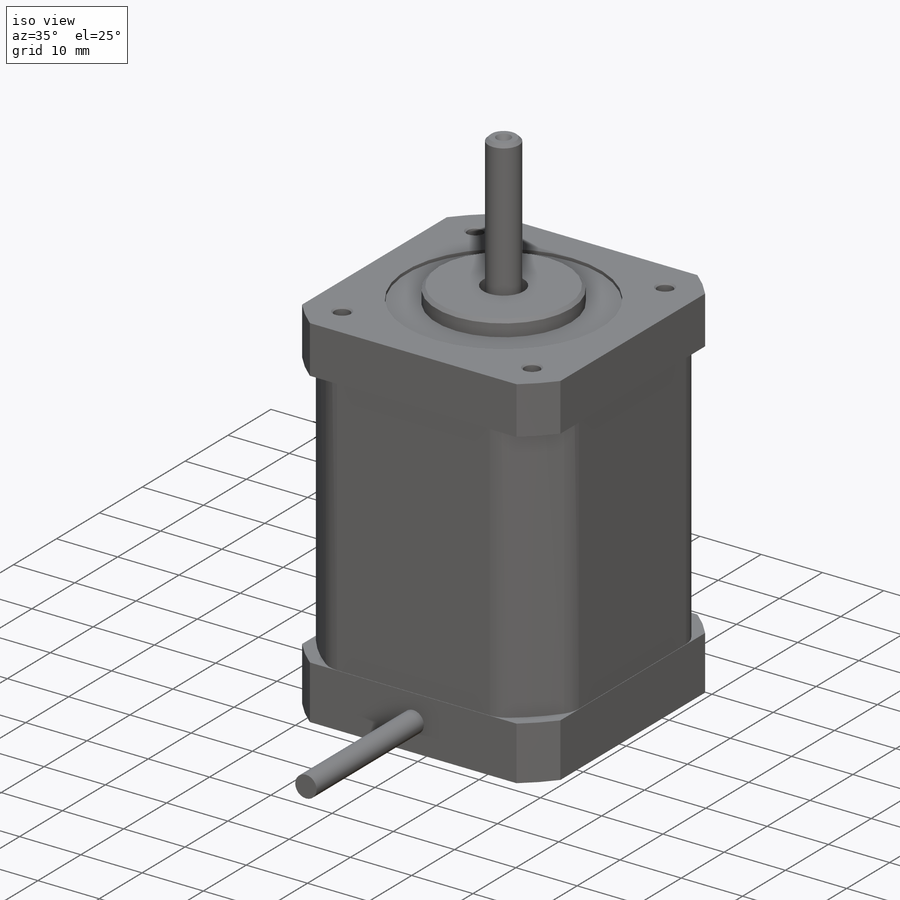
[diagram: iso view]
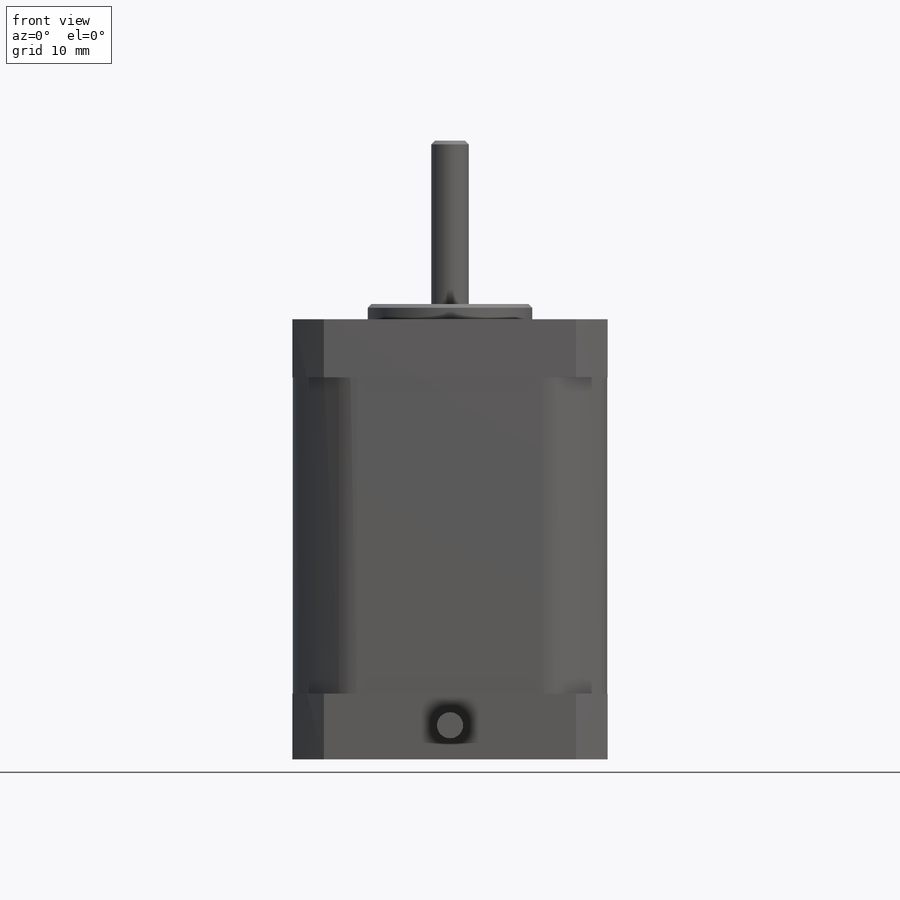
[diagram: front view]
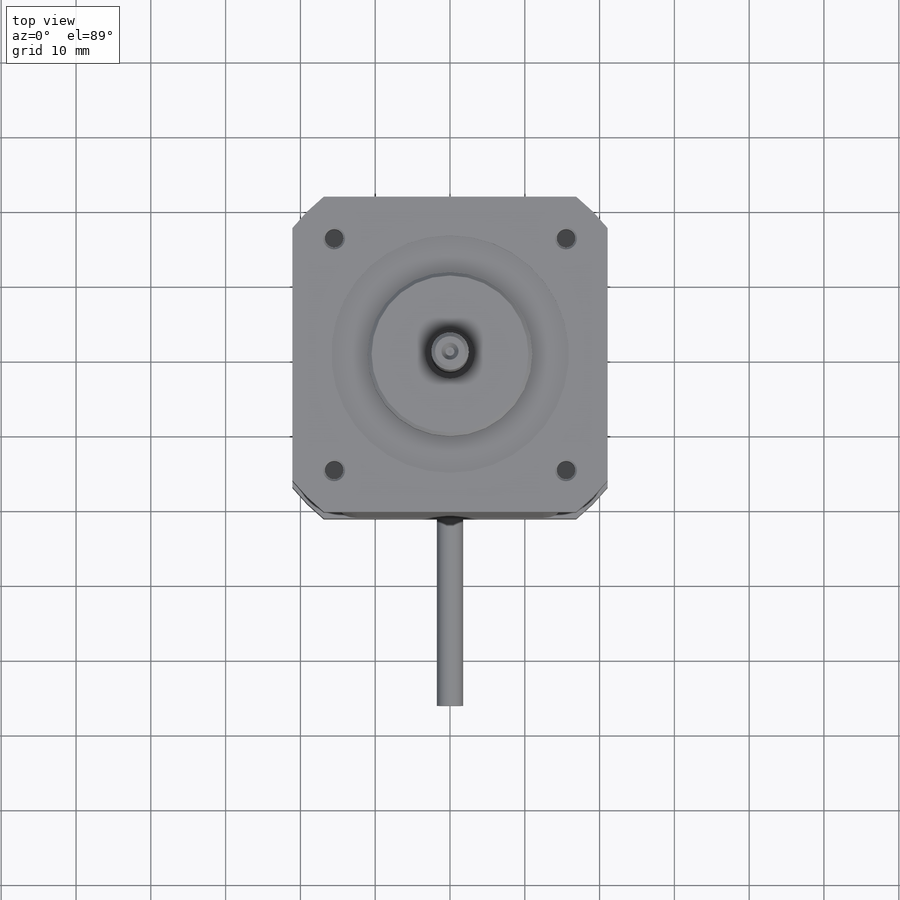
[diagram: top view]
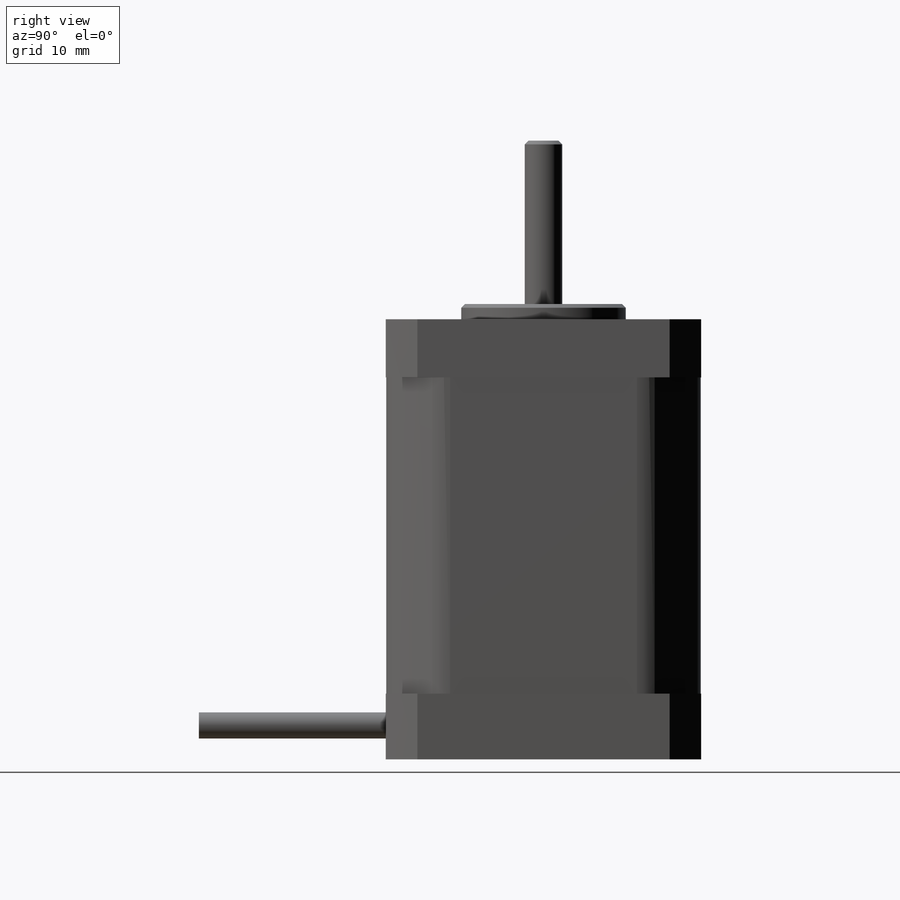
[diagram: right view]
SOLIDWORKS PART (.sldprt)
format: sldprt  version: not decoded by parser v0  size: 571,392 bytes
history: native  units: mm
features: sketch x14, cut_extrude x5, extrude x4, revolve x4, material x1, chamfer x1, cut_revolve x1 (+16 scaffold rows collapsed)
feature tree (46):
  scaffold x16  (default folders/planes/origin — collapsed)
  material  "Plain Carbon Steel"
  sketch  "Sketch1"  dims[D1=54.0mm D2=42.164mm]
  extrude  "Boss-Extrude1"  Depth=7.7724mm
  sketch  "Sketch2"  dims[D1=31.75mm]
  cut_extrude  "Cut-Extrude1"  Depth=0.508mm
  sketch  "Sketch4"  dims[D1=20.0mm]
  cut_extrude  "Cut-Extrude2"  Depth=6.096mm
  sketch  "Sketch5"  dims[D1=16.0mm]
  cut_extrude  "Cut-Extrude3"  [1 undecoded]
  sketch  "Sketch6"  dims[D1=2.46mm D2=31.0mm]
  cut_extrude  "Cut-Extrude4"  Depth=4.6mm
  chamfer  "Chamfer1"  Distance=0.25mm Angle=45deg
  sketch  "Sketch7"  dims[D1=27.0mm D2=22.0mm D3=2.54mm D4=0.56mm D5=0.0508mm D6=12.0mm D7=6.6mm D8=0.508mm D9=0.508mm D10=5.31mm D11=25.9mm D12=1.778mm]
  revolve  "Revolve1"  Angle=360deg
  sketch  "Sketch8"  dims[D2=50.212mm D3=4.0132mm D1=42.037mm D4=0.907mm]
  extrude  "Boss-Extrude2"  Depth=42.29354mm
  sketch  "Sketch9"
  extrude  "Boss-Extrude3"  Depth=8.7884mm
  sketch  "Sketch10"
  cut_extrude  "Cut-Extrude5"  Depth=7.104mm
  sketch  "Sketch11"  dims[D1=4.826mm D2=1.1176mm D3=6.0071mm D4=1.6256mm D5=16.0mm]
  cut_revolve  "Cut-Revolve1"  Angle=360deg
  sketch  "Sketch12"  dims[D1=16.0mm D2=27.0mm D3=12.95mm D4=6.25mm D5=8.0264mm D6=0.381mm]
  revolve  "Revolve2"  Angle=360deg
  sketch  "Sketch13"  dims[c1.D1=~4.093761mm c2.D1=~178.854775deg c3.D1=5.0mm c3.D2=16.0mm c3.D3=5.0mm c3.D4=5.0mm c3.D5=16.0mm c3.D6=5.0mm]
  revolve  "Revolve3"  Angle=360deg
  sketch  "Sketch14"  dims[D1=5.0mm D2=~23.87854mm D3=6.48mm D4=25.0mm D5=3.0mm D6=1.0mm D7=0.5mm D8=4.0mm D9=2.29mm D10=1.19mm D11=1.0mm D12=2.3mm]
  revolve  "Revolve4"  Angle=360deg
  sketch  "Sketch15"  dims[D1=3.5mm]
  extrude  "Boss-Extrude4"  Depth=25mm
decode coverage: 26 of 29 modeling features carry decoded parameters
note: ~ marks probable driven/reference dimensions
note: 1 parameter value undecoded
note: suppression state not decoded; provenance and decode notes live in map.json
